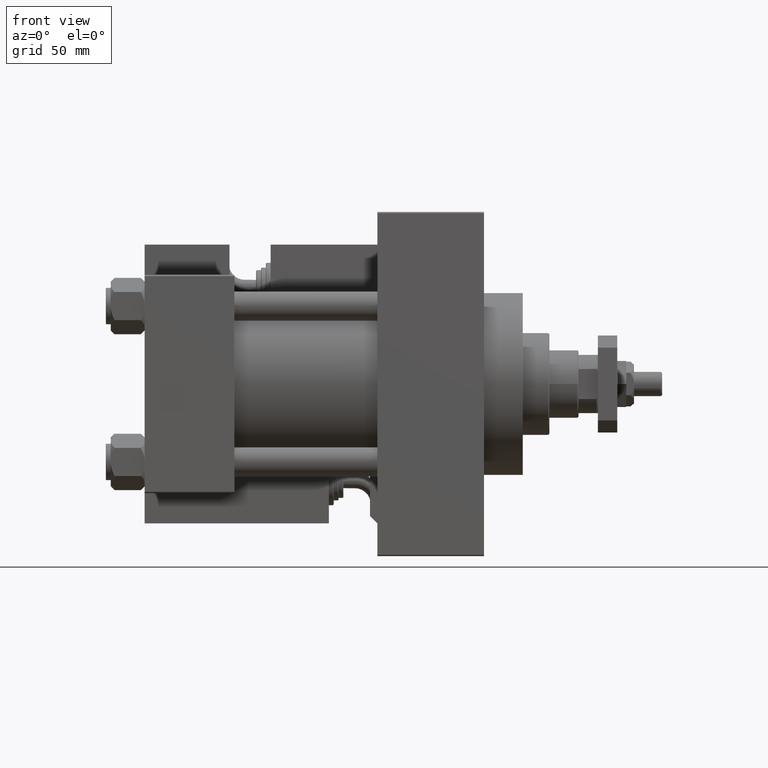
[diagram: clean part render]
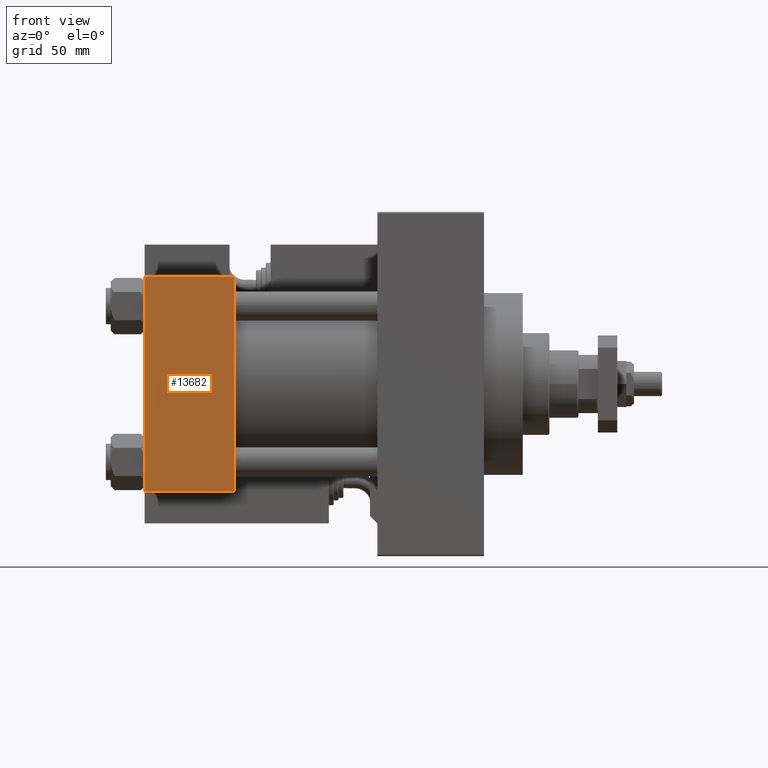
[diagram: same view with one face highlighted and labeled with its STEP entity id]
A machine part, front view. The second image highlights one B-rep face of the part: STEP entity #13682.
In plain terms, the highlighted planar face has unit normal (0, 1, 0).
Its self-contained STEP definition (entity closure, byte-faithful):
#1088 = ORIENTED_EDGE ( 'NONE', *, *, #44289, .T. ) ;
#2445 = CARTESIAN_POINT ( 'NONE',  ( 0.000000000000000000, -45.00000000000000000, 44.49999999999998579 ) ) ;
#5165 = CARTESIAN_POINT ( 'NONE',  ( 0.000000000000000000, -45.00000000000000000, -44.49999999999997158 ) ) ;
#5184 = LINE ( 'NONE', #22129, #21169 ) ;
#6663 = CARTESIAN_POINT ( 'NONE',  ( 37.00000000000000000, -45.00000000000000000, 44.99999999999998579 ) ) ;
#9790 = VECTOR ( 'NONE', #49482, 1000.000000000000000 ) ;
#12559 = DIRECTION ( 'NONE',  ( 1.000000000000000000, 0.000000000000000000, 0.000000000000000000 ) ) ;
#13682 = ADVANCED_FACE ( 'NONE', ( #36492 ), #27064, .F. ) ;
#13919 = ORIENTED_EDGE ( 'NONE', *, *, #21042, .F. ) ;
#14078 = CARTESIAN_POINT ( 'NONE',  ( 37.00000000000000000, -45.00000000000000000, 44.49999999999998579 ) ) ;
#18269 = AXIS2_PLACEMENT_3D ( 'NONE', #19266, #53483, #28424 ) ;
#18545 = VERTEX_POINT ( 'NONE', #33508 ) ;
#19266 = CARTESIAN_POINT ( 'NONE',  ( 37.00000000000000000, -45.00000000000000000, 44.99999999999998579 ) ) ;
#19849 = VECTOR ( 'NONE', #12559, 1000.000000000000000 ) ;
#20611 = CARTESIAN_POINT ( 'NONE',  ( 37.00000000000000000, -45.00000000000000000, -44.50000000000000000 ) ) ;
#21042 = EDGE_CURVE ( 'NONE', #34245, #18545, #39549, .T. ) ;
#21169 = VECTOR ( 'NONE', #26031, 1000.000000000000000 ) ;
#22129 = CARTESIAN_POINT ( 'NONE',  ( 0.000000000000000000, -45.00000000000000000, 44.99999999999998579 ) ) ;
#22146 = LINE ( 'NONE', #14078, #38171 ) ;
#24968 = EDGE_LOOP ( 'NONE', ( #1088, #44682, #13919, #34525 ) ) ;
#26031 = DIRECTION ( 'NONE',  ( 0.000000000000000000, 0.000000000000000000, -1.000000000000000000 ) ) ;
#26048 = DIRECTION ( 'NONE',  ( -1.000000000000000000, 0.000000000000000000, 0.000000000000000000 ) ) ;
#27064 = PLANE ( 'NONE',  #18269 ) ;
#28424 = DIRECTION ( 'NONE',  ( 0.000000000000000000, -0.000000000000000000, 1.000000000000000000 ) ) ;
#33508 = CARTESIAN_POINT ( 'NONE',  ( 37.00000000000000000, -45.00000000000000000, -44.49999999999997158 ) ) ;
#34245 = VERTEX_POINT ( 'NONE', #45901 ) ;
#34525 = ORIENTED_EDGE ( 'NONE', *, *, #46057, .T. ) ;
#36492 = FACE_OUTER_BOUND ( 'NONE', #24968, .T. ) ;
#38171 = VECTOR ( 'NONE', #26048, 1000.000000000000000 ) ;
#39549 = LINE ( 'NONE', #6663, #9790 ) ;
#43392 = VERTEX_POINT ( 'NONE', #5165 ) ;
#44289 = EDGE_CURVE ( 'NONE', #47803, #43392, #5184, .T. ) ;
#44682 = ORIENTED_EDGE ( 'NONE', *, *, #51391, .T. ) ;
#45671 = LINE ( 'NONE', #20611, #19849 ) ;
#45901 = CARTESIAN_POINT ( 'NONE',  ( 37.00000000000000000, -45.00000000000000000, 44.49999999999998579 ) ) ;
#46057 = EDGE_CURVE ( 'NONE', #34245, #47803, #22146, .T. ) ;
#47803 = VERTEX_POINT ( 'NONE', #2445 ) ;
#49482 = DIRECTION ( 'NONE',  ( 0.000000000000000000, 0.000000000000000000, -1.000000000000000000 ) ) ;
#51391 = EDGE_CURVE ( 'NONE', #43392, #18545, #45671, .T. ) ;
#53483 = DIRECTION ( 'NONE',  ( -0.000000000000000000, 1.000000000000000000, 0.000000000000000000 ) ) ;